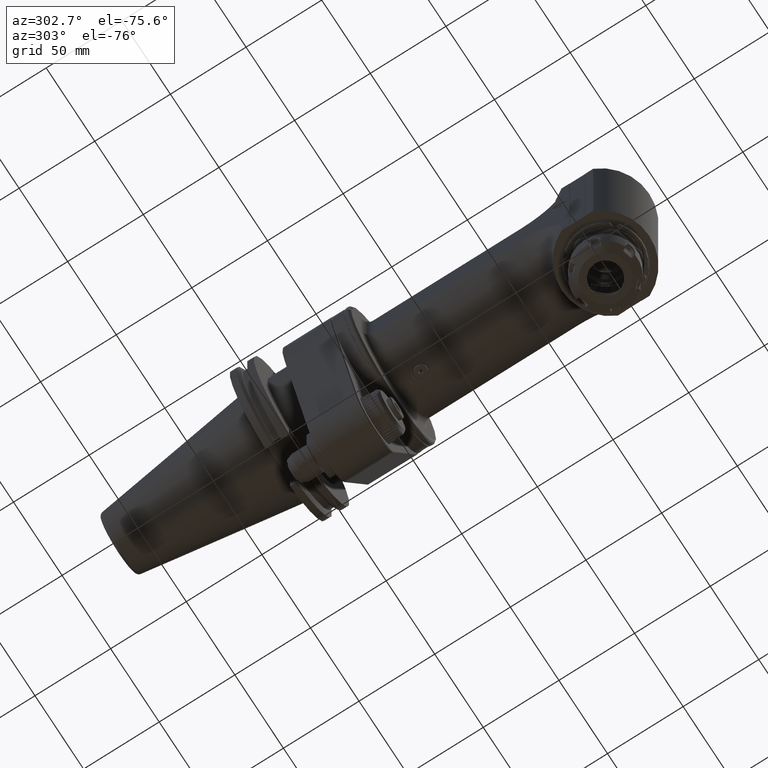
[diagram: clean part render]
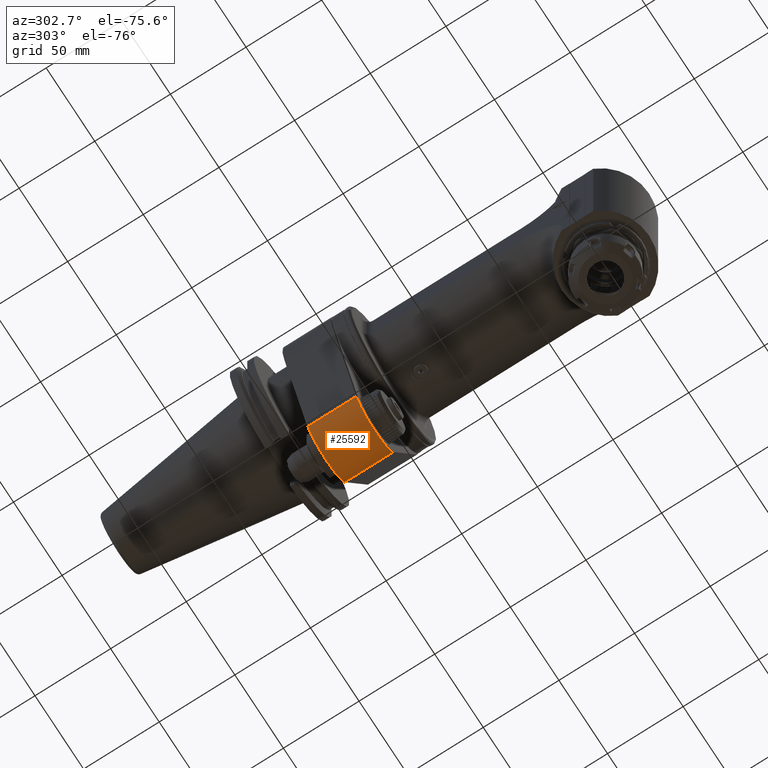
[diagram: same view with one face highlighted and labeled with its STEP entity id]
A machine part, auxiliary view. The second image highlights one B-rep face of the part: STEP entity #25592.
In plain terms, the highlighted cylindrical surface (edge-blend (fillet) strip) has radius 20 mm, axis along (0, 1, 0).
Its self-contained STEP definition (entity closure, byte-faithful):
#1210=CIRCLE('',#27152,20.);
#1367=CIRCLE('',#27482,20.);
#2797=CYLINDRICAL_SURFACE('',#27483,20.);
#3257=FACE_OUTER_BOUND('',#4813,.T.);
#4813=EDGE_LOOP('',(#17985,#17986,#17987,#17988));
#6651=LINE('',#39155,#8641);
#6654=LINE('',#39163,#8644);
#8641=VECTOR('',#30951,31.99973324648);
#8644=VECTOR('',#30962,31.99973305069);
#10481=VERTEX_POINT('',#37491);
#10482=VERTEX_POINT('',#37495);
#10762=VERTEX_POINT('',#39153);
#10763=VERTEX_POINT('',#39159);
#13112=EDGE_CURVE('',#10482,#10481,#1210,.T.);
#13560=EDGE_CURVE('',#10762,#10481,#6651,.T.);
#13563=EDGE_CURVE('',#10762,#10763,#1367,.T.);
#13564=EDGE_CURVE('',#10482,#10763,#6654,.T.);
#17985=ORIENTED_EDGE('',*,*,#13563,.T.);
#17986=ORIENTED_EDGE('',*,*,#13564,.F.);
#17987=ORIENTED_EDGE('',*,*,#13112,.T.);
#17988=ORIENTED_EDGE('',*,*,#13560,.F.);
#25592=ADVANCED_FACE('',(#3257),#2797,.T.);
#27152=AXIS2_PLACEMENT_3D('',#37496,#30059,#30060);
#27482=AXIS2_PLACEMENT_3D('',#39161,#30958,#30959);
#27483=AXIS2_PLACEMENT_3D('',#39162,#30960,#30961);
#30059=DIRECTION('center_axis',(0.,1.,0.));
#30060=DIRECTION('ref_axis',(0.,0.,-1.));
#30951=DIRECTION('',(1.95400881205E-14,-1.,0.));
#30958=DIRECTION('center_axis',(0.,-1.,0.));
#30959=DIRECTION('ref_axis',(0.,0.,-1.));
#30960=DIRECTION('center_axis',(0.,1.,0.));
#30961=DIRECTION('ref_axis',(1.,0.,0.));
#30962=DIRECTION('',(0.,1.,0.));
#37491=CARTESIAN_POINT('',(-18.9983553230184,0.500125747354139,-86.2499999776134));
#37495=CARTESIAN_POINT('',(18.9983553225688,0.500125750878564,-86.2499999836575));
#37496=CARTESIAN_POINT('Origin',(-1.95399252334E-13,0.5002509278372,-80.));
#39153=CARTESIAN_POINT('',(-18.9983553230185,32.4998742526452,-86.2499999776133));
#39155=CARTESIAN_POINT('',(-18.99835521121,32.49986662324,-86.24999994083));
#39159=CARTESIAN_POINT('',(18.9983552104546,32.4998745360779,-86.2499999437968));
#39161=CARTESIAN_POINT('Origin',(2.700062395888E-13,32.49974907216,-80.));
#39162=CARTESIAN_POINT('Origin',(0.,0.,-80.));
#39163=CARTESIAN_POINT('',(18.99835520941,0.5001334746534,-86.24999994643));